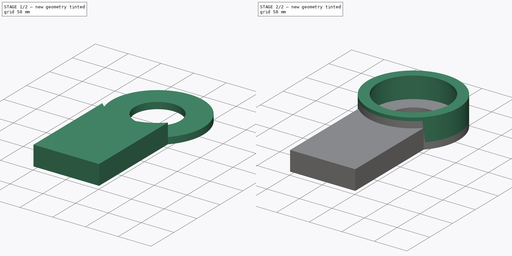
[diagram: build sequence overview — one tinted view per stage of 2, left to right]
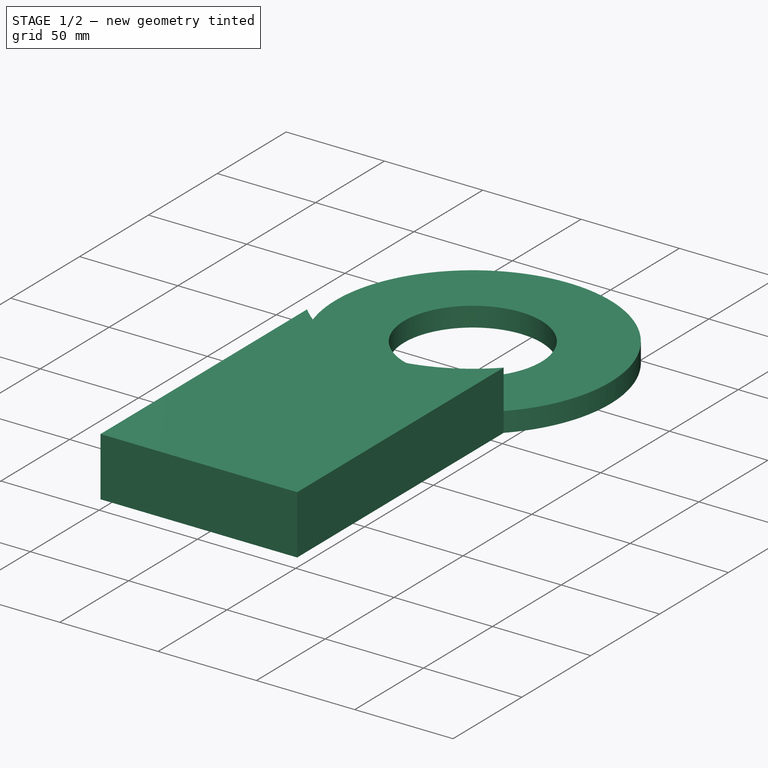
[diagram: stage 1 of 2 — iso view after this stage's code; geometry added in this stage tinted green]
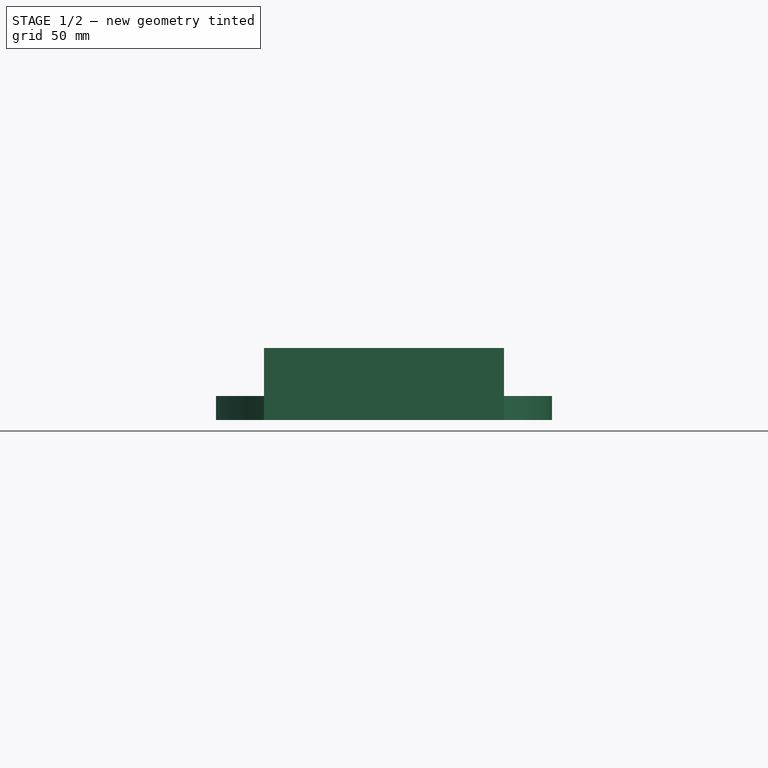
[diagram: stage 1 of 2 — front view after this stage's code; geometry added in this stage tinted green]
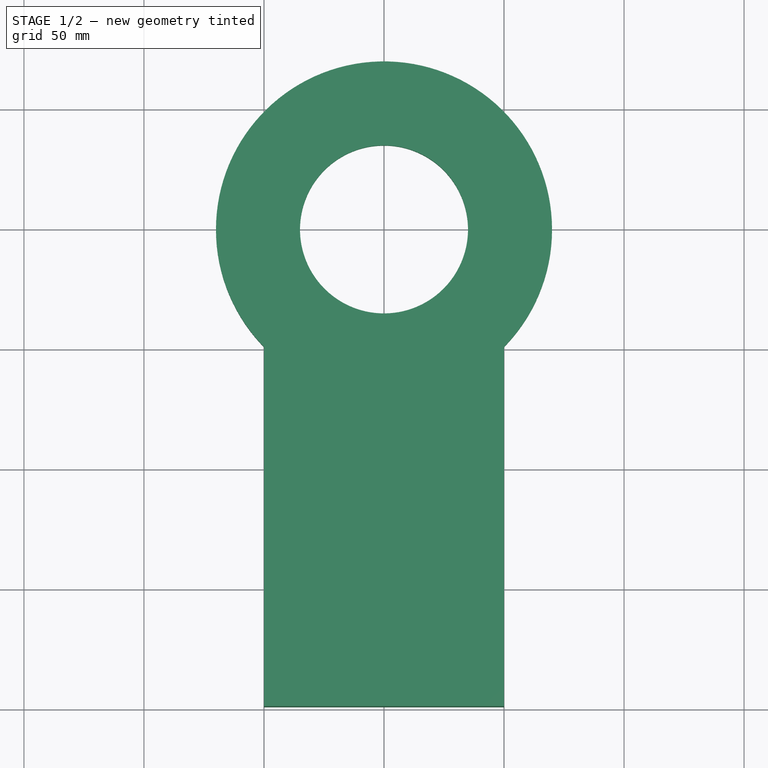
[diagram: stage 1 of 2 — top view after this stage's code; geometry added in this stage tinted green]
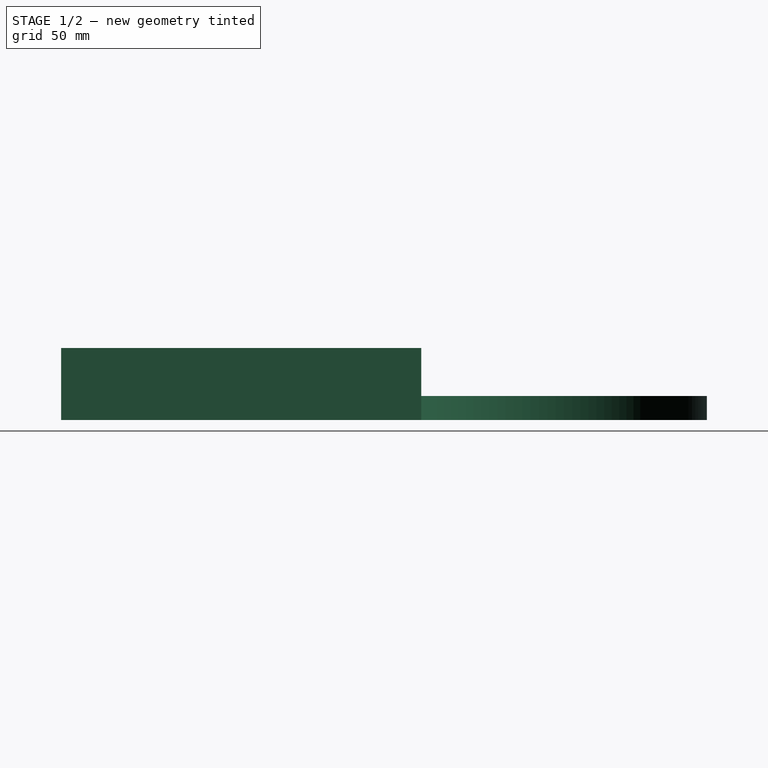
[diagram: stage 1 of 2 — right view after this stage's code; geometry added in this stage tinted green]
FCSTD DOCUMENT  (FreeCAD 0.15R4671 (Git))
Label: SGH_BearingCup
License: All rights reserved
LicenseURL: http://en.wikipedia.org/wiki/All_rights_reserved
objects: Sketcher::SketchObject×4, PartDesign::Pad×4
note: 12 computed .brp shape members not serialized (recipe doc carries the construction recipe); baked Part::Feature solids carry a one-line shape summary decoded from their .brp

FEATURE [Sketcher::SketchObject] Sketch  label="BLoadSketch"
  sketch-geometry (2):
    g0: Circle CenterX=0 CenterY=0 CenterZ=0 NormalX=0 NormalY=0 NormalZ=1 Radius=70
    g1: Circle CenterX=0 CenterY=0 CenterZ=0 NormalX=0 NormalY=0 NormalZ=1 Radius=35
  constraints (4):
    c: Coincident(g0,g-1)
    c: Coincident(g1,g-1)
    c: Radius(g0) = 70
    c: Radius(g1) = 35
FEATURE [PartDesign::Pad] Pad  label="BearingLoad"
  Length = 10
  Length2 = 100
  Sketch = -> Sketch
  Type = 0
FEATURE [Sketcher::SketchObject] Sketch003  label="BArmSketch"
  sketch-geometry (4):
    g0: ArcOfCircle CenterX=0 CenterY=0 CenterZ=0 NormalX=0 NormalY=0 NormalZ=1 Radius=70 StartAngle=3.91679 EndAngle=5.50799
    g1: LineSegment StartX=-50 StartY=-48.9898 StartZ=0 EndX=-50 EndY=-198.99 EndZ=0
    g2: LineSegment StartX=-50 StartY=-198.99 StartZ=0 EndX=50 EndY=-198.99 EndZ=0
    g3: LineSegment StartX=50 StartY=-198.99 StartZ=0 EndX=50 EndY=-48.9898 EndZ=0
  constraints (12):
    c: Coincident(g0,g-1)
    c: Radius(g0) = 70
    c: Symmetric(g0,g0,g-2)
    c: Vertical(g1)
    c: Coincident(g1,g2)
    c: Coincident(g2,g3)
    c: Coincident(g3,g0)
    c: Coincident(g1,g0)
    c: Vertical(g3)
    c: Horizontal(g2)
    c: DistanceY(g3) = 150
    c: DistanceX(g2) = 100
FEATURE [PartDesign::Pad] Pad003  label="BArm"
  Length = 30
  Length2 = 100
  Sketch = -> Sketch003
  Type = 0
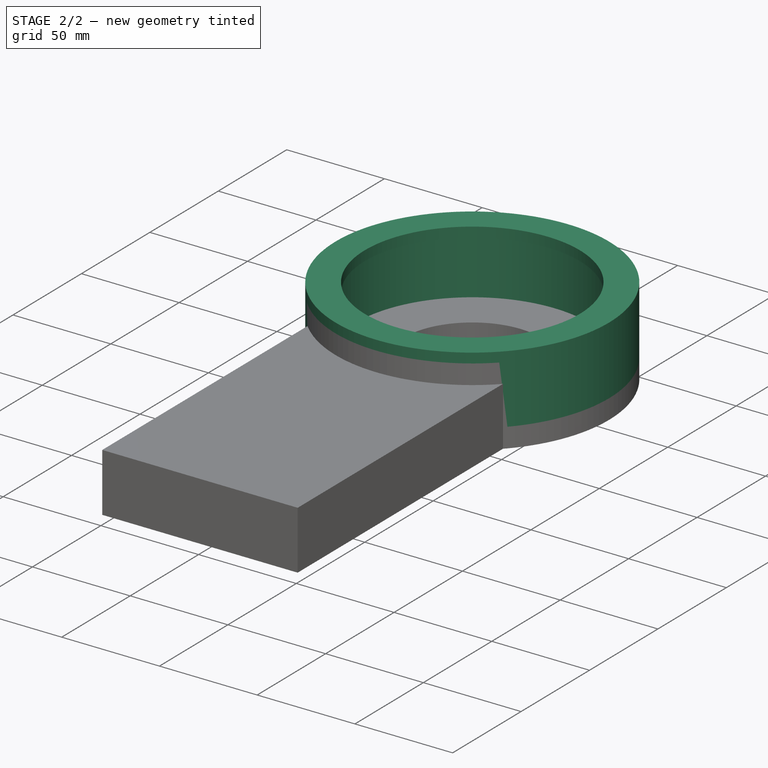
[diagram: stage 2 of 2 — iso view after this stage's code; geometry added in this stage tinted green]
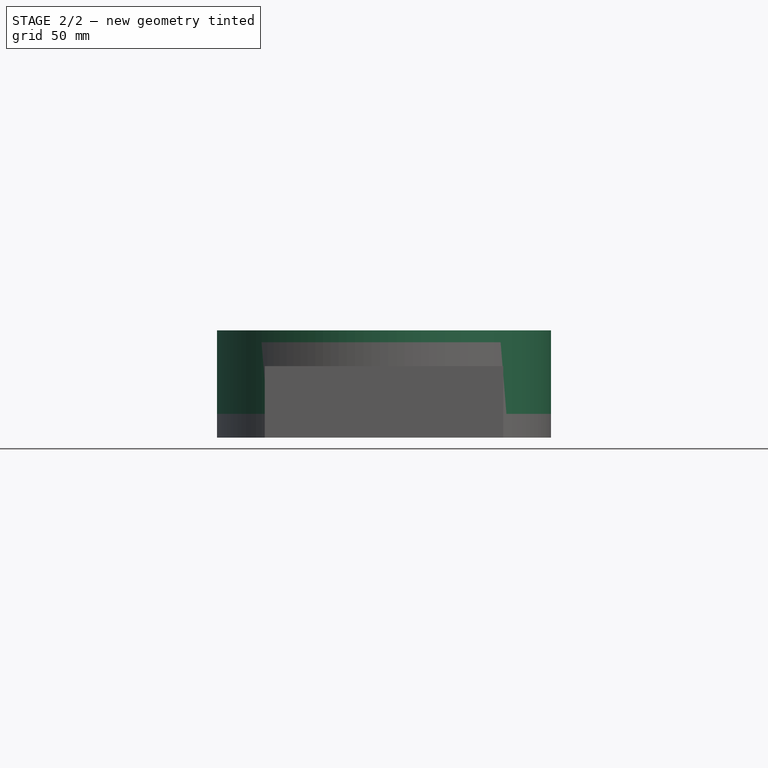
[diagram: stage 2 of 2 — front view after this stage's code; geometry added in this stage tinted green]
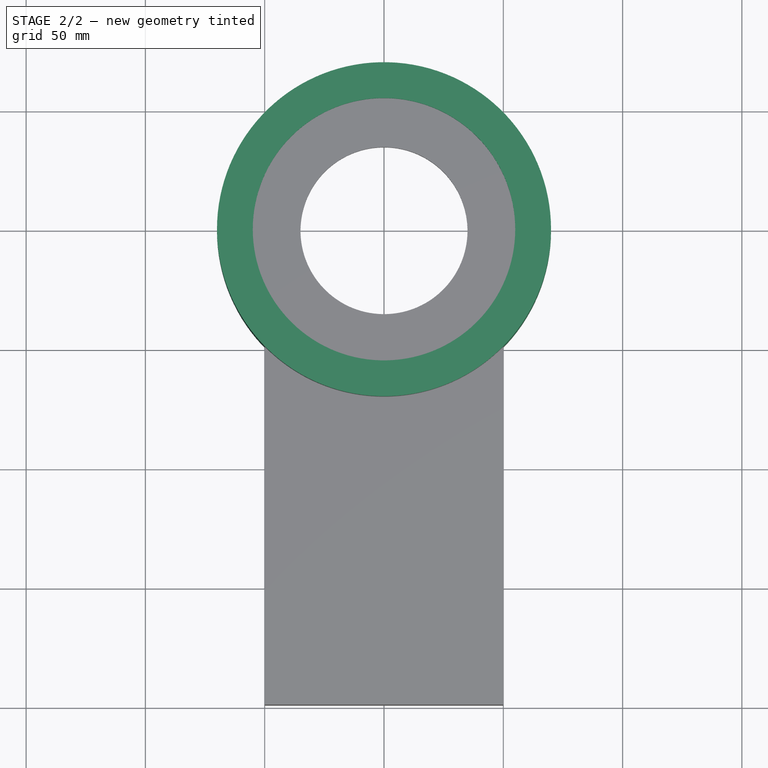
[diagram: stage 2 of 2 — top view after this stage's code; geometry added in this stage tinted green]
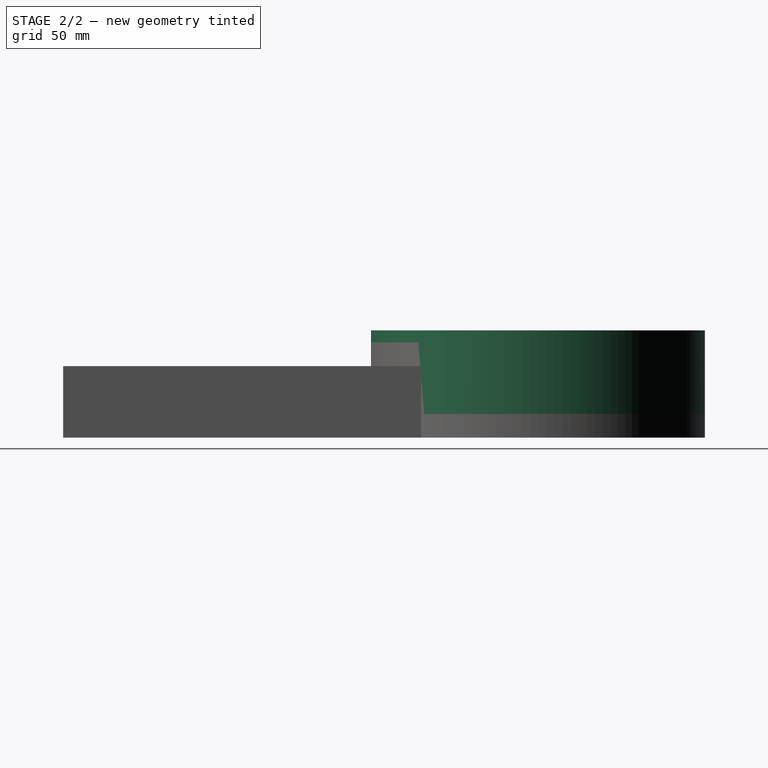
[diagram: stage 2 of 2 — right view after this stage's code; geometry added in this stage tinted green]
FEATURE [Sketcher::SketchObject] Sketch001  label="BWallSketch"
  Placement = pos=(0,0,10) rot=(0,0,1;0rad)
  Support = -> Pad [Face4]
  sketch-geometry (2):
    g0: Circle CenterX=0 CenterY=0 CenterZ=0 NormalX=0 NormalY=0 NormalZ=1 Radius=70
    g1: Circle CenterX=0 CenterY=0 CenterZ=0 NormalX=0 NormalY=0 NormalZ=1 Radius=60
  constraints (4):
    c: Coincident(g0,g-1)
    c: Radius(g0) = 70
    c: Coincident(g1,g-1)
    c: Radius(g1) = 60
FEATURE [PartDesign::Pad] Pad001  label="BWall"
  Length = 30
  Length2 = 100
  Sketch = -> Sketch001
  Type = 0
FEATURE [Sketcher::SketchObject] Sketch002  label="BLockSketch"
  Placement = pos=(0,0,40) rot=(0,0,1;0rad)
  Support = -> Pad001 [Face6]
  sketch-geometry (2):
    g0: Circle CenterX=0 CenterY=0 CenterZ=0 NormalX=0 NormalY=0 NormalZ=1 Radius=55
    g1: Circle CenterX=0 CenterY=0 CenterZ=0 NormalX=0 NormalY=0 NormalZ=1 Radius=70
  constraints (4):
    c: Coincident(g0,g1)
    c: Coincident(g0,g-1)
    c: Radius(g0) = 55
    c: Radius(g1) = 70
FEATURE [PartDesign::Pad] Pad002  label="BLock"
  Length = 5
  Length2 = 100
  Sketch = -> Sketch002
  Type = 0
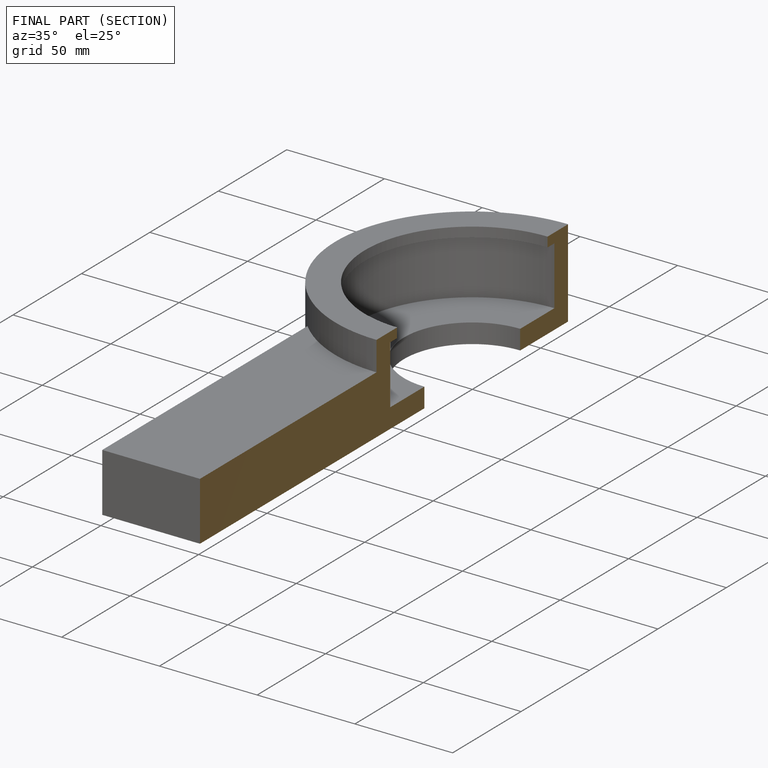
[diagram: finished part — half-section view (interior)]
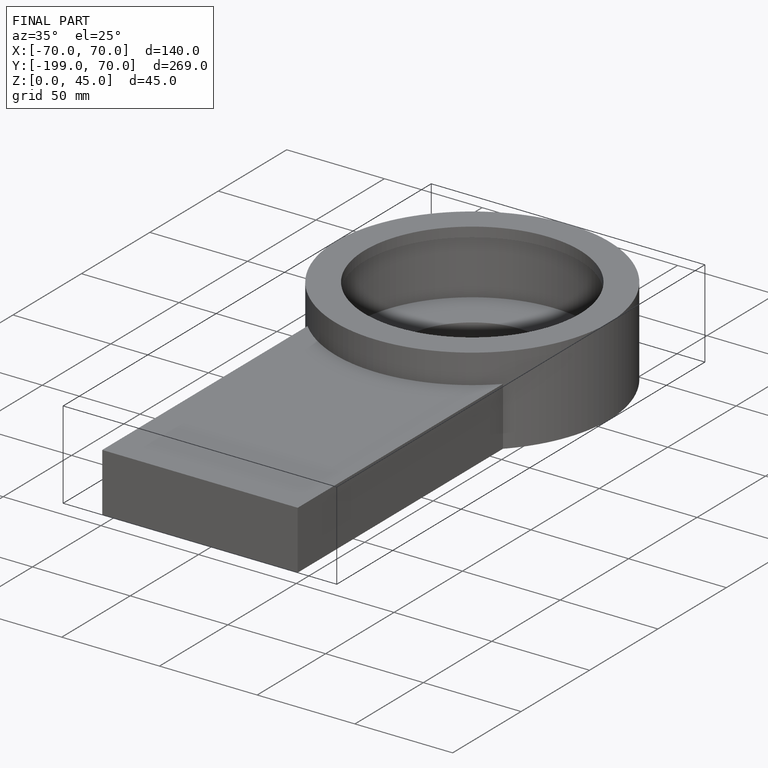
[diagram: finished part — iso view with bounding-box wireframe]
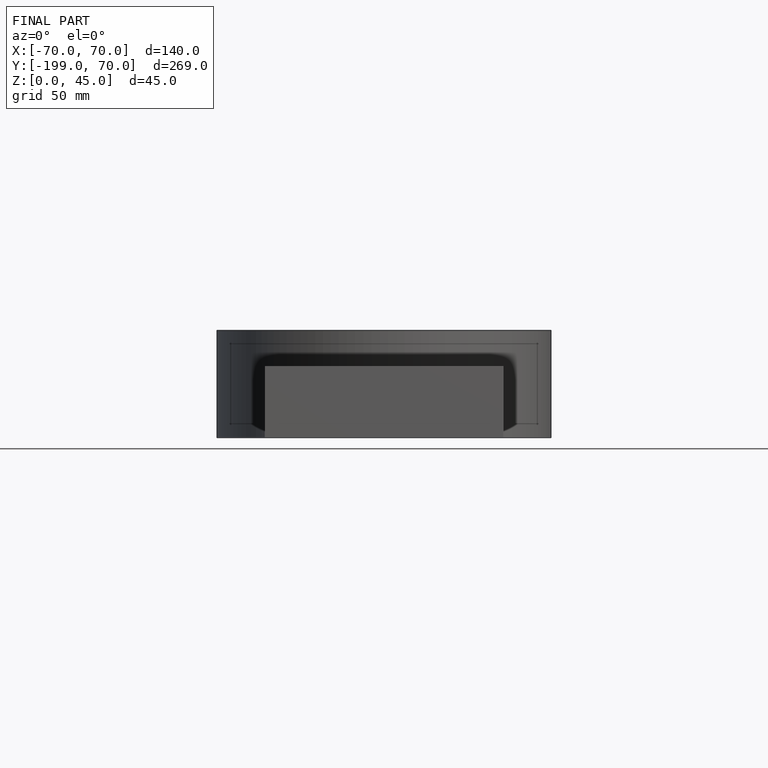
[diagram: finished part — front view with bounding-box wireframe]
